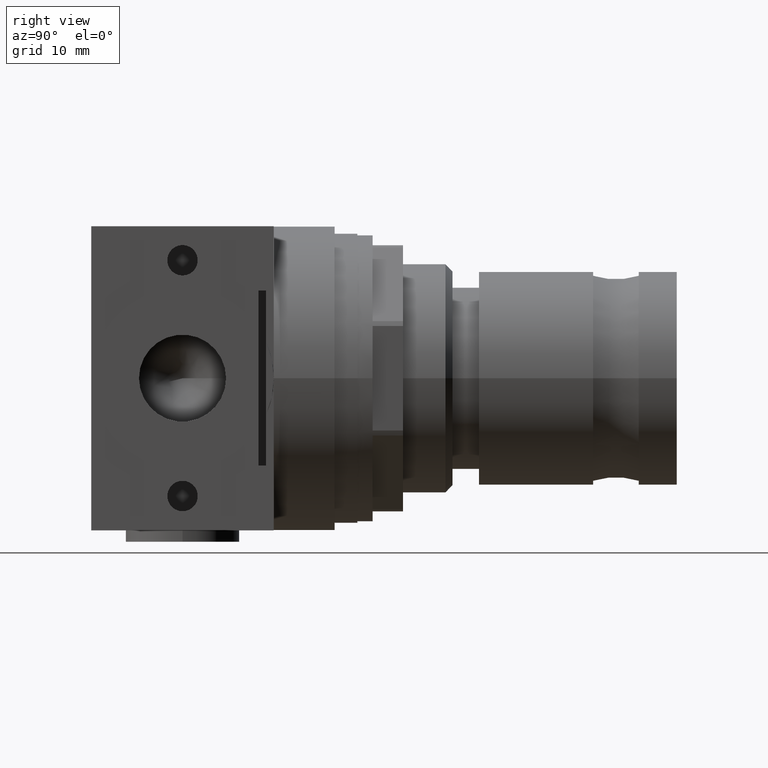
[diagram: clean part render]
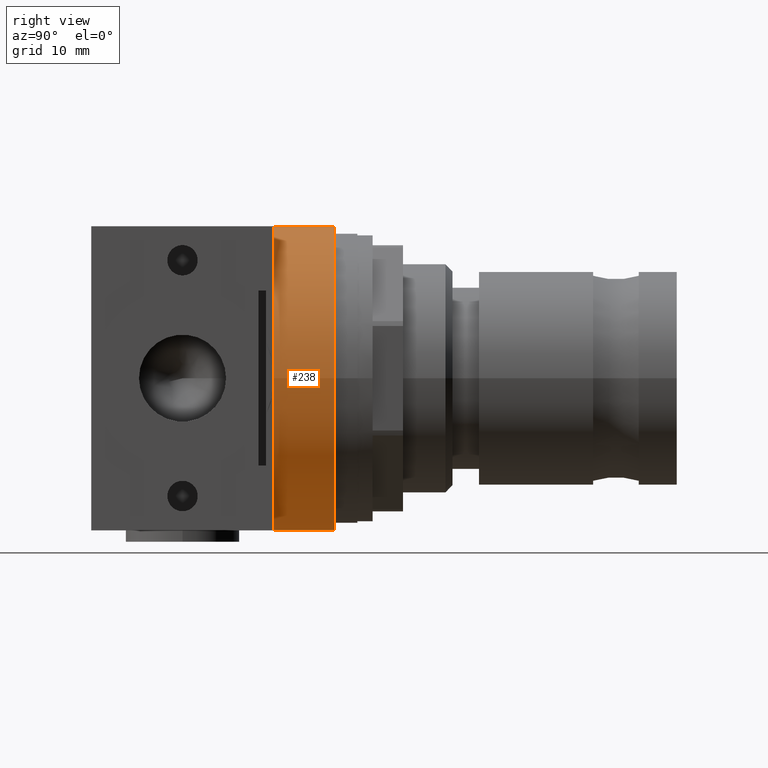
[diagram: same view with one face highlighted and labeled with its STEP entity id]
A machine part, right view. The second image highlights one B-rep face of the part: STEP entity #238.
In plain terms, the highlighted cylindrical surface (bore or boss wall) has radius 19.95 mm, axis along (0, 1, 0).
Its self-contained STEP definition (entity closure, byte-faithful):
#238 = ADVANCED_FACE( '', ( #551, #552 ), #553, .T. );
#551 = FACE_OUTER_BOUND( '', #996, .T. );
#552 = FACE_OUTER_BOUND( '', #997, .T. );
#553 = CYLINDRICAL_SURFACE( '', #998, 19.9500000000000 );
#996 = EDGE_LOOP( '', ( #1485 ) );
#997 = EDGE_LOOP( '', ( #1486, #1487 ) );
#998 = AXIS2_PLACEMENT_3D( '', #1488, #1489, #1490 );
#1485 = ORIENTED_EDGE( '', *, *, #2481, .F. );
#1486 = ORIENTED_EDGE( '', *, *, #2482, .T. );
#1487 = ORIENTED_EDGE( '', *, *, #2483, .T. );
#1488 = CARTESIAN_POINT( '', ( 0.000000000000000, 20.0000000000000, 0.000000000000000 ) );
#1489 = DIRECTION( '', ( -0.000000000000000, 1.00000000000000, 0.000000000000000 ) );
#1490 = DIRECTION( '', ( 0.000000000000000, 0.000000000000000, -1.00000000000000 ) );
#2481 = EDGE_CURVE( '', #2917, #2917, #2918, .T. );
#2482 = EDGE_CURVE( '', #2835, #2919, #2920, .F. );
#2483 = EDGE_CURVE( '', #2919, #2835, #2921, .F. );
#2835 = VERTEX_POINT( '', #3415 );
#2917 = VERTEX_POINT( '', #3521 );
#2918 = CIRCLE( '', #3522, 19.9500000000000 );
#2919 = VERTEX_POINT( '', #3523 );
#2920 = CIRCLE( '', #3524, 19.9500000000000 );
#2921 = CIRCLE( '', #3525, 19.9500000000000 );
#3415 = CARTESIAN_POINT( '', ( 19.9500000000000, 12.0000000000000, -1.84242419865797E-015 ) );
#3521 = CARTESIAN_POINT( '', ( 19.9500000000000, 20.0000000000000, 0.000000000000000 ) );
#3522 = AXIS2_PLACEMENT_3D( '', #4217, #4218, #4219 );
#3523 = CARTESIAN_POINT( '', ( -19.9500000000000, 12.0000000000000, 0.000000000000000 ) );
#3524 = AXIS2_PLACEMENT_3D( '', #4220, #4221, #4222 );
#3525 = AXIS2_PLACEMENT_3D( '', #4223, #4224, #4225 );
#4217 = CARTESIAN_POINT( '', ( 0.000000000000000, 20.0000000000000, 0.000000000000000 ) );
#4218 = DIRECTION( '', ( -0.000000000000000, 1.00000000000000, 0.000000000000000 ) );
#4219 = DIRECTION( '', ( 1.00000000000000, 0.000000000000000, 0.000000000000000 ) );
#4220 = CARTESIAN_POINT( '', ( 0.000000000000000, 12.0000000000000, 0.000000000000000 ) );
#4221 = DIRECTION( '', ( 0.000000000000000, -1.00000000000000, 0.000000000000000 ) );
#4222 = DIRECTION( '', ( 0.000000000000000, 0.000000000000000, -1.00000000000000 ) );
#4223 = CARTESIAN_POINT( '', ( 0.000000000000000, 12.0000000000000, 0.000000000000000 ) );
#4224 = DIRECTION( '', ( 0.000000000000000, -1.00000000000000, 0.000000000000000 ) );
#4225 = DIRECTION( '', ( 0.000000000000000, 0.000000000000000, -1.00000000000000 ) );